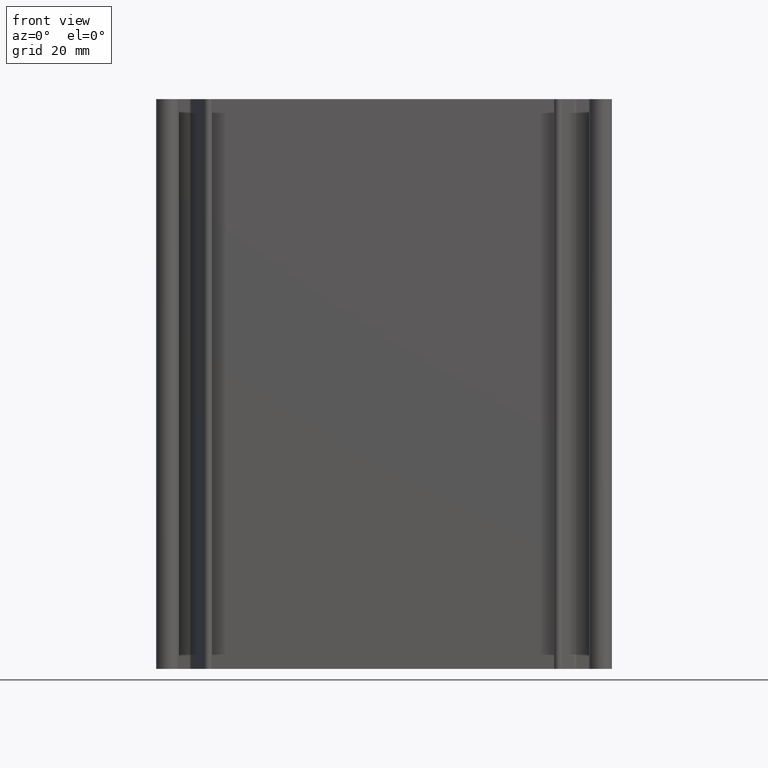
[diagram: clean part render]
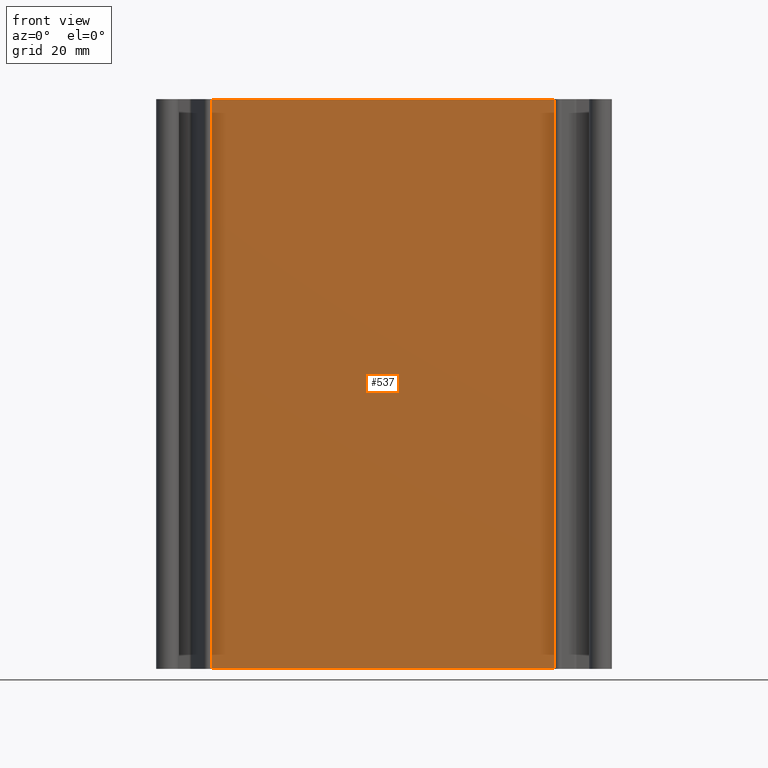
[diagram: same view with one face highlighted and labeled with its STEP entity id]
A machine part, front view. The second image highlights one B-rep face of the part: STEP entity #537.
In plain terms, the highlighted planar face has unit normal (0, -1, 0).
Its self-contained STEP definition (entity closure, byte-faithful):
#81=FACE_OUTER_BOUND('',#109,.T.);
#109=EDGE_LOOP('',(#439,#440,#441,#442));
#159=LINE('',#931,#209);
#160=LINE('',#934,#210);
#161=LINE('',#936,#211);
#162=LINE('',#937,#212);
#209=VECTOR('',#768,10.);
#210=VECTOR('',#771,10.);
#211=VECTOR('',#772,10.);
#212=VECTOR('',#773,10.);
#261=VERTEX_POINT('',#927);
#262=VERTEX_POINT('',#929);
#263=VERTEX_POINT('',#933);
#264=VERTEX_POINT('',#935);
#337=EDGE_CURVE('',#261,#262,#159,.T.);
#338=EDGE_CURVE('',#263,#261,#160,.T.);
#339=EDGE_CURVE('',#264,#262,#161,.T.);
#340=EDGE_CURVE('',#263,#264,#162,.T.);
#439=ORIENTED_EDGE('',*,*,#338,.T.);
#440=ORIENTED_EDGE('',*,*,#337,.T.);
#441=ORIENTED_EDGE('',*,*,#339,.F.);
#442=ORIENTED_EDGE('',*,*,#340,.F.);
#510=PLANE('',#614);
#537=ADVANCED_FACE('',(#81),#510,.T.);
#614=AXIS2_PLACEMENT_3D('',#932,#769,#770);
#768=DIRECTION('',(0.,0.,1.));
#769=DIRECTION('center_axis',(8.94961399197132E-15,-1.,0.));
#770=DIRECTION('ref_axis',(1.,8.94961399197132E-15,0.));
#771=DIRECTION('',(1.,8.94961399197132E-15,0.));
#772=DIRECTION('',(1.,8.94961399197132E-15,0.));
#773=DIRECTION('',(0.,0.,1.));
#927=CARTESIAN_POINT('',(30.2688382148724,2.66453525910038E-13,0.));
#929=CARTESIAN_POINT('',(30.2688382148724,2.66453525910038E-13,100.));
#931=CARTESIAN_POINT('',(30.2688382148724,2.66453525910038E-13,0.));
#932=CARTESIAN_POINT('Origin',(-30.2688382148724,-2.75335310107039E-13,
0.));
#933=CARTESIAN_POINT('',(-30.2688382148724,-2.75335310107039E-13,0.));
#934=CARTESIAN_POINT('',(-30.2688382148724,-2.75335310107039E-13,0.));
#935=CARTESIAN_POINT('',(-30.2688382148724,-2.75335310107039E-13,100.));
#936=CARTESIAN_POINT('',(-30.2688382148724,-2.75335310107039E-13,100.));
#937=CARTESIAN_POINT('',(-30.2688382148724,-2.75335310107039E-13,0.));